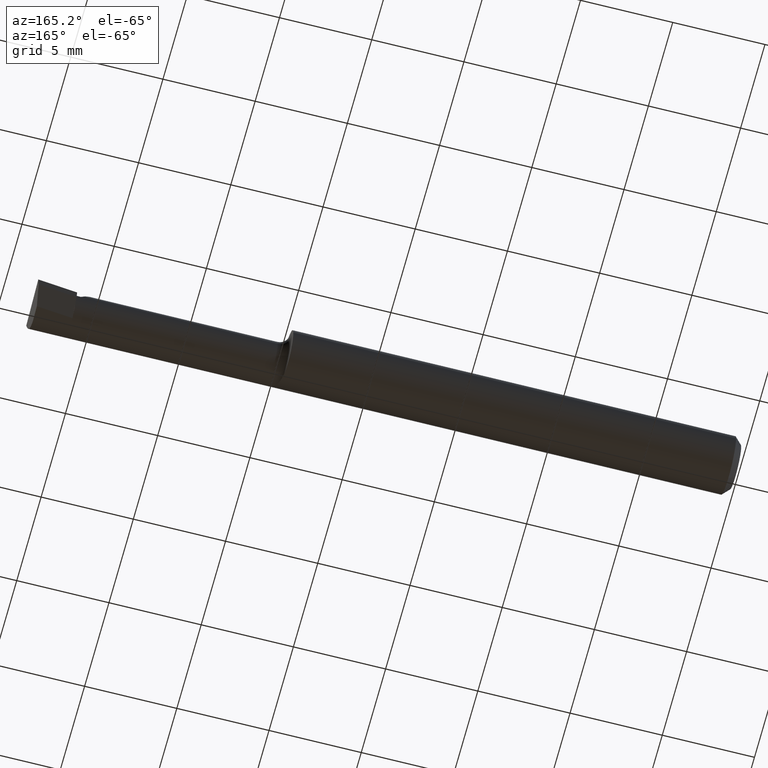
[diagram: clean part render]
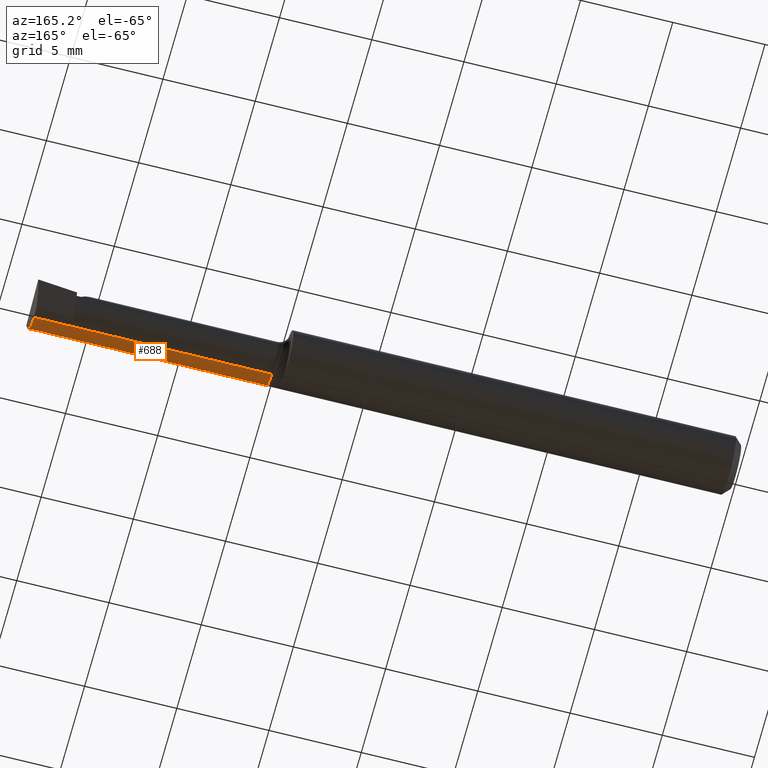
[diagram: same view with one face highlighted and labeled with its STEP entity id]
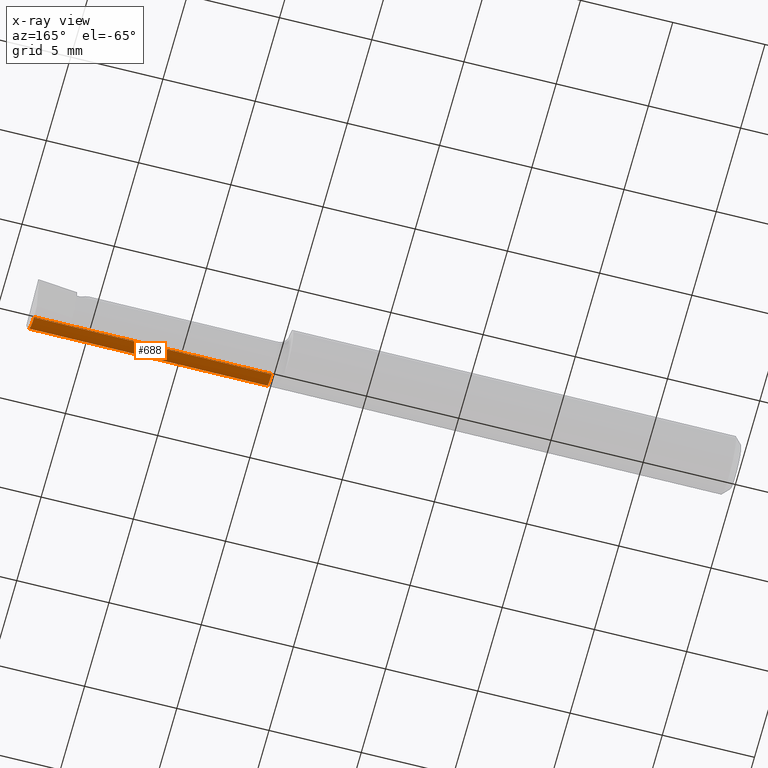
[diagram: x-ray of the same camera — body ghosted, the highlighted face saturated]
A machine part, auxiliary view. The second image highlights one B-rep face of the part: STEP entity #688.
The next image is the same camera in x-ray: the body ghosted, the highlighted face saturated — about 0% of this face is hidden behind the body in this view.
In plain terms, the highlighted cylindrical surface (edge-blend (fillet) strip) has radius 1.2205 mm, axis along (-1, -0, -0).
Its self-contained STEP definition (entity closure, byte-faithful):
#10 = CARTESIAN_POINT ( 'NONE',  ( 1.493233423732482024, -0.05210000000000007681, -0.03425072991922935295 ) ) ;
#24 = FACE_OUTER_BOUND ( 'NONE', #540, .T. ) ;
#31 = AXIS2_PLACEMENT_3D ( 'NONE', #457, #461, #410 ) ;
#48 = EDGE_CURVE ( 'NONE', #428, #53, #257, .T. ) ;
#49 = CARTESIAN_POINT ( 'NONE',  ( 0.0000000000000000000, -0.01839999999999999275, -0.04804999999999997468 ) ) ;
#53 = VERTEX_POINT ( 'NONE', #676 ) ;
#84 = VERTEX_POINT ( 'NONE', #464 ) ;
#113 = VERTEX_POINT ( 'NONE', #669 ) ;
#117 = CARTESIAN_POINT ( 'NONE',  ( 1.492371467082626468, -0.04299473640227069460, -0.04320958667840189144 ) ) ;
#144 = DIRECTION ( 'NONE',  ( -1.000000000000000000, -0.0000000000000000000, -0.0000000000000000000 ) ) ;
#171 = CARTESIAN_POINT ( 'NONE',  ( 1.492086480543131755, -0.03117368152160948994, -0.04804999999999997468 ) ) ;
#176 = ORIENTED_EDGE ( 'NONE', *, *, #511, .T. ) ;
#207 = VECTOR ( 'NONE', #505, 39.37007874015748143 ) ;
#214 = DIRECTION ( 'NONE',  ( 0.0000000000000000000, 0.0000000000000000000, 1.000000000000000000 ) ) ;
#216 = CARTESIAN_POINT ( 'NONE',  ( 0.9850000000000000977, -0.01839999999999999275, -0.04804999999999994692 ) ) ;
#231 = VERTEX_POINT ( 'NONE', #304 ) ;
#256 = VECTOR ( 'NONE', #537, 39.37007874015748143 ) ;
#257 = CIRCLE ( 'NONE', #31, 0.04804999999999994692 ) ;
#273 = VECTOR ( 'NONE', #548, 39.37007874015748143 ) ;
#291 = CARTESIAN_POINT ( 'NONE',  ( 1.199999999999999956, -0.05210000000000007681, -0.03425072991922935295 ) ) ;
#301 = ORIENTED_EDGE ( 'NONE', *, *, #431, .F. ) ;
#304 = CARTESIAN_POINT ( 'NONE',  ( 1.415000000000000036, -0.01839999999999999969, -0.04804999999999998855 ) ) ;
#394 = EDGE_CURVE ( 'NONE', #231, #428, #415, .T. ) ;
#395 = CARTESIAN_POINT ( 'NONE',  ( 1.492420971165606458, -0.01839999999999999969, -0.04804999999999998855 ) ) ;
#399 = ORIENTED_EDGE ( 'NONE', *, *, #48, .F. ) ;
#410 = DIRECTION ( 'NONE',  ( 0.0000000000000000000, 0.0000000000000000000, 1.000000000000000000 ) ) ;
#415 = LINE ( 'NONE', #49, #256 ) ;
#423 = LINE ( 'NONE', #291, #207 ) ;
#428 = VERTEX_POINT ( 'NONE', #216 ) ;
#431 = EDGE_CURVE ( 'NONE', #113, #231, #707, .T. ) ;
#457 = CARTESIAN_POINT ( 'NONE',  ( 0.9850000000000000977, -0.01839999999999999969, 0.0000000000000000000 ) ) ;
#461 = DIRECTION ( 'NONE',  ( -1.000000000000000000, -0.0000000000000000000, -0.0000000000000000000 ) ) ;
#464 = CARTESIAN_POINT ( 'NONE',  ( 1.493233423732482024, -0.05210000000000007681, -0.03425072991922935295 ) ) ;
#505 = DIRECTION ( 'NONE',  ( -1.000000000000000000, -0.0000000000000000000, -0.0000000000000000000 ) ) ;
#507 = EDGE_CURVE ( 'NONE', #84, #113, #591, .T. ) ;
#511 = EDGE_CURVE ( 'NONE', #84, #53, #423, .T. ) ;
#528 = AXIS2_PLACEMENT_3D ( 'NONE', #699, #144, #214 ) ;
#537 = DIRECTION ( 'NONE',  ( -1.000000000000000000, -0.0000000000000000000, -0.0000000000000000000 ) ) ;
#539 = CARTESIAN_POINT ( 'NONE',  ( 1.500000000000000222, -0.01839999999999999969, -0.04804999999999998855 ) ) ;
#540 = EDGE_LOOP ( 'NONE', ( #550, #301, #632, #176, #399 ) ) ;
#548 = DIRECTION ( 'NONE',  ( -1.000000000000000000, 5.691349986800549142E-18, -0.0000000000000000000 ) ) ;
#550 = ORIENTED_EDGE ( 'NONE', *, *, #394, .F. ) ;
#560 = CYLINDRICAL_SURFACE ( 'NONE', #528, 0.04804999999999997468 ) ;
#591 =( BOUNDED_CURVE ( )  B_SPLINE_CURVE ( 3, ( #10, #117, #171, #395 ),
 .UNSPECIFIED., .F., .F. ) 
 B_SPLINE_CURVE_WITH_KNOTS ( ( 4, 4 ),
 ( 5.715941252449188603, 6.493234751459777243 ),
 .UNSPECIFIED. ) 
 CURVE ( )  GEOMETRIC_REPRESENTATION_ITEM ( )  RATIONAL_B_SPLINE_CURVE ( ( 1.000000000000000000, 0.9502818019828906948, 0.9502818019828906948, 1.000000000000000000 ) ) 
 REPRESENTATION_ITEM ( '' )  );
#632 = ORIENTED_EDGE ( 'NONE', *, *, #507, .F. ) ;
#669 = CARTESIAN_POINT ( 'NONE',  ( 1.492420971165606458, -0.01839999999999999969, -0.04804999999999998855 ) ) ;
#676 = CARTESIAN_POINT ( 'NONE',  ( 0.9850000000000000977, -0.05210000000000011150, -0.03425072991922927662 ) ) ;
#688 = ADVANCED_FACE ( 'NONE', ( #24 ), #560, .T. ) ;
#699 = CARTESIAN_POINT ( 'NONE',  ( 0.0000000000000000000, -0.01839999999999999969, 0.0000000000000000000 ) ) ;
#707 = LINE ( 'NONE', #539, #273 ) ;